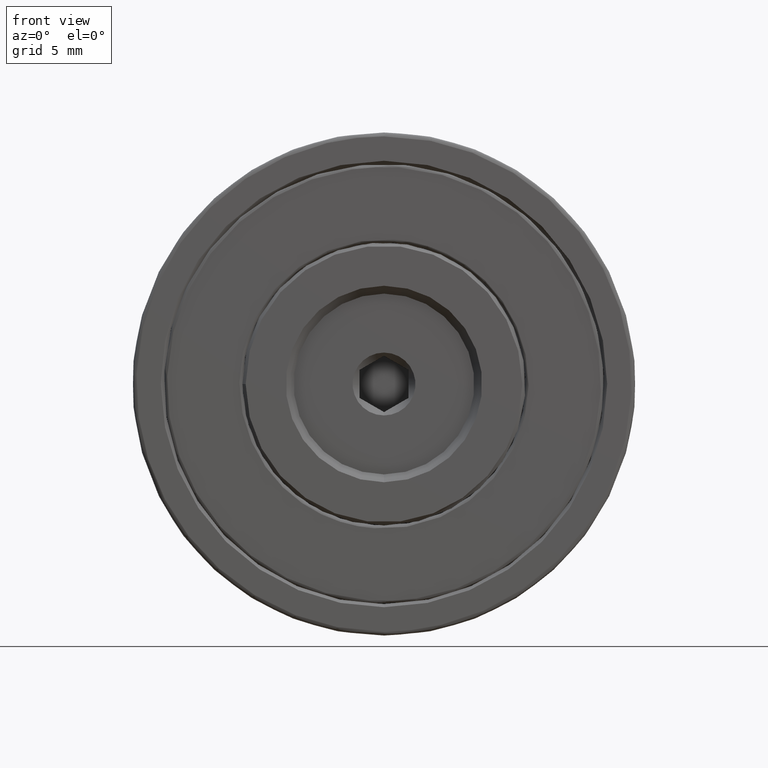
[diagram: clean part render]
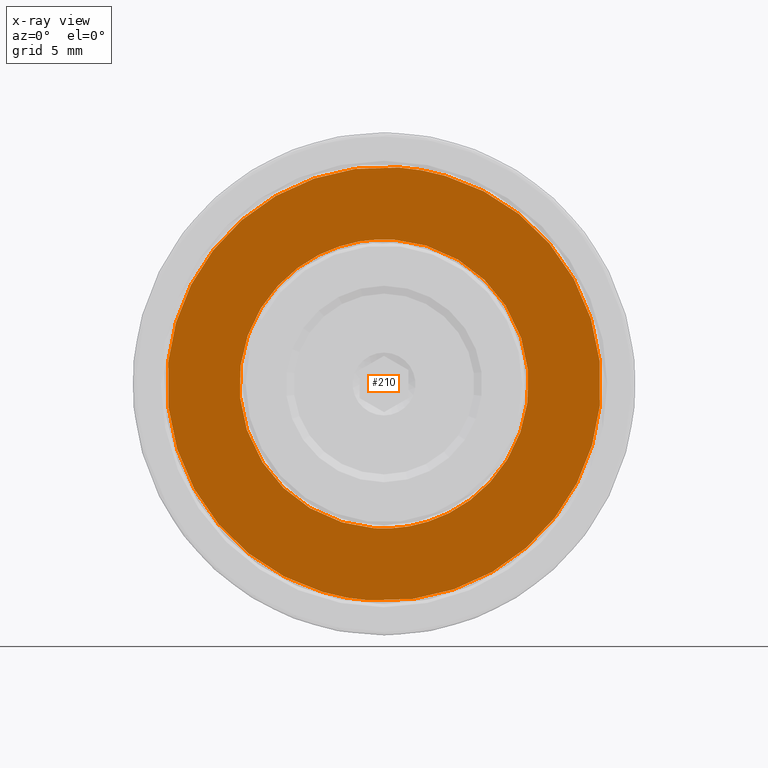
[diagram: x-ray — body ghosted, one internal face saturated and labeled with its STEP entity id]
A machine part, front view, then the same camera in x-ray: the body is ghosted and one INTERNAL B-rep face — a face not visible from any outside direction — is saturated and labeled: STEP entity #210.
In plain terms, the highlighted planar face has unit normal (-0, 1, 0).
Its self-contained STEP definition (entity closure, byte-faithful):
#15 = PLANE ( 'NONE',  #903 ) ;
#17 = ORIENTED_EDGE ( 'NONE', *, *, #644, .F. ) ;
#23 = VERTEX_POINT ( 'NONE', #273 ) ;
#100 = CARTESIAN_POINT ( 'NONE',  ( -1.212235202309680293, -3.301574736878457372, 22.82170090007659979 ) ) ;
#162 = CARTESIAN_POINT ( 'NONE',  ( 0.3665808737923556548, -3.301574736878457372, 45.76744864988510386 ) ) ;
#192 = ORIENTED_EDGE ( 'NONE', *, *, #879, .F. ) ;
#193 = CARTESIAN_POINT ( 'NONE',  ( 0.05081765857194815716, -3.301574736878457372, 41.17829909992340731 ) ) ;
#210 = ADVANCED_FACE ( 'NONE', ( #707, #814 ), #15, .T. ) ;
#211 = CARTESIAN_POINT ( 'NONE',  ( 0.3665808737923556548, -3.301574736878457372, 45.76744864988510386 ) ) ;
#256 = CARTESIAN_POINT ( 'NONE',  ( 0.05081765857194815716, -3.301574736878457372, 41.17829909992340731 ) ) ;
#273 = CARTESIAN_POINT ( 'NONE',  ( -1.527998417530087361, -3.301574736878457372, 18.23255135011489969 ) ) ;
#372 = CARTESIAN_POINT ( 'NONE',  ( 0.3665808737923556548, -3.301574736878457372, 45.76744864988510386 ) ) ;
#382 = EDGE_CURVE ( 'NONE', #23, #587, #766, .T. ) ;
#453 = CARTESIAN_POINT ( 'NONE',  ( -1.212235202309680293, -3.301574736878457372, 22.82170090007659979 ) ) ;
#549 =( BOUNDED_CURVE ( )  B_SPLINE_CURVE ( 3, ( #193, #972, #1146, #100 ),
 .UNSPECIFIED., .F., .T. ) 
 B_SPLINE_CURVE_WITH_KNOTS ( ( 4, 4 ),
 ( 0.000000000000000000, 1.000000000000000000 ),
 .UNSPECIFIED. ) 
 CURVE ( )  GEOMETRIC_REPRESENTATION_ITEM ( )  RATIONAL_B_SPLINE_CURVE ( ( 1.000000000000000000, 0.3333333333333333703, 0.3333333333333333703, 1.000000000000000000 ) ) 
 REPRESENTATION_ITEM ( '' )  );
#557 = CARTESIAN_POINT ( 'NONE',  ( 27.90147817356255544, -3.301574736878456928, 43.87286935856265302 ) ) ;
#587 = VERTEX_POINT ( 'NONE', #372 ) ;
#608 = CARTESIAN_POINT ( 'NONE',  ( -0.5807087718688666023, -3.301574736878457372, 32.00000000000000000 ) ) ;
#644 = EDGE_CURVE ( 'NONE', #770, #1108, #549, .T. ) ;
#683 = DIRECTION ( 'NONE',  ( 0.06864417722182768189, 0.000000000000000000, 0.9976412065134129259 ) ) ;
#707 = FACE_BOUND ( 'NONE', #1024, .T. ) ;
#709 = CARTESIAN_POINT ( 'NONE',  ( -27.16831642597784580, -3.301574736878456928, 47.66202794120755470 ) ) ;
#738 = CARTESIAN_POINT ( 'NONE',  ( 26.00689888224011170, -3.301574736878456928, 16.33797205879245951 ) ) ;
#756 =( BOUNDED_CURVE ( )  B_SPLINE_CURVE ( 3, ( #453, #1043, #919, #926 ),
 .UNSPECIFIED., .F., .T. ) 
 B_SPLINE_CURVE_WITH_KNOTS ( ( 4, 4 ),
 ( 0.000000000000000000, 1.000000000000000000 ),
 .UNSPECIFIED. ) 
 CURVE ( )  GEOMETRIC_REPRESENTATION_ITEM ( )  RATIONAL_B_SPLINE_CURVE ( ( 1.000000000000000000, 0.3333333333333333703, 0.3333333333333333703, 1.000000000000000000 ) ) 
 REPRESENTATION_ITEM ( '' )  );
#766 =( BOUNDED_CURVE ( )  B_SPLINE_CURVE ( 3, ( #849, #738, #557, #162 ),
 .UNSPECIFIED., .F., .T. ) 
 B_SPLINE_CURVE_WITH_KNOTS ( ( 4, 4 ),
 ( 0.000000000000000000, 1.000000000000000000 ),
 .UNSPECIFIED. ) 
 CURVE ( )  GEOMETRIC_REPRESENTATION_ITEM ( )  RATIONAL_B_SPLINE_CURVE ( ( 1.000000000000000000, 0.3333333333333333703, 0.3333333333333333703, 1.000000000000000000 ) ) 
 REPRESENTATION_ITEM ( '' )  );
#770 = VERTEX_POINT ( 'NONE', #256 ) ;
#814 = FACE_OUTER_BOUND ( 'NONE', #1218, .T. ) ;
#833 = ORIENTED_EDGE ( 'NONE', *, *, #382, .F. ) ;
#849 = CARTESIAN_POINT ( 'NONE',  ( -1.527998417530087361, -3.301574736878457372, 18.23255135011489969 ) ) ;
#855 = EDGE_CURVE ( 'NONE', #1108, #770, #756, .T. ) ;
#879 = EDGE_CURVE ( 'NONE', #587, #23, #893, .T. ) ;
#893 =( BOUNDED_CURVE ( )  B_SPLINE_CURVE ( 3, ( #211, #709, #907, #1189 ),
 .UNSPECIFIED., .F., .T. ) 
 B_SPLINE_CURVE_WITH_KNOTS ( ( 4, 4 ),
 ( 0.000000000000000000, 1.000000000000000000 ),
 .UNSPECIFIED. ) 
 CURVE ( )  GEOMETRIC_REPRESENTATION_ITEM ( )  RATIONAL_B_SPLINE_CURVE ( ( 1.000000000000000000, 0.3333333333333333703, 0.3333333333333333703, 1.000000000000000000 ) ) 
 REPRESENTATION_ITEM ( '' )  );
#903 = AXIS2_PLACEMENT_3D ( 'NONE', #608, #1009, #683 ) ;
#907 = CARTESIAN_POINT ( 'NONE',  ( -29.06289571730028598, -3.301574736878456928, 20.12713064143734343 ) ) ;
#919 = CARTESIAN_POINT ( 'NONE',  ( -18.30578054127485998, -3.301574736878456928, 42.44135196080503647 ) ) ;
#924 = CARTESIAN_POINT ( 'NONE',  ( -1.212235202309680293, -3.301574736878457372, 22.82170090007659979 ) ) ;
#925 = ORIENTED_EDGE ( 'NONE', *, *, #855, .F. ) ;
#926 = CARTESIAN_POINT ( 'NONE',  ( 0.05081765857194815716, -3.301574736878457372, 41.17829909992340731 ) ) ;
#972 = CARTESIAN_POINT ( 'NONE',  ( 18.40741585841875505, -3.301574736878456928, 39.91524623904177105 ) ) ;
#1009 = DIRECTION ( 'NONE',  ( -0.000000000000000000, 1.000000000000000000, 0.000000000000000000 ) ) ;
#1024 = EDGE_LOOP ( 'NONE', ( #925, #17 ) ) ;
#1043 = CARTESIAN_POINT ( 'NONE',  ( -19.56883340215648914, -3.301574736878456928, 24.08475376095822895 ) ) ;
#1108 = VERTEX_POINT ( 'NONE', #924 ) ;
#1146 = CARTESIAN_POINT ( 'NONE',  ( 17.14436299753712589, -3.301574736878456928, 21.55864803919497064 ) ) ;
#1189 = CARTESIAN_POINT ( 'NONE',  ( -1.527998417530087361, -3.301574736878457372, 18.23255135011489969 ) ) ;
#1218 = EDGE_LOOP ( 'NONE', ( #833, #192 ) ) ;